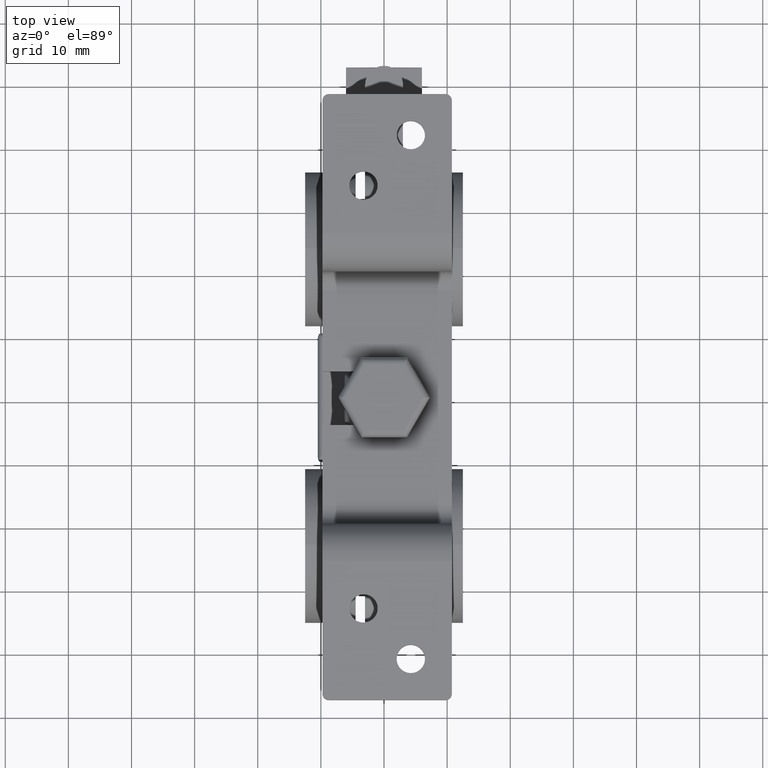
[diagram: clean part render]
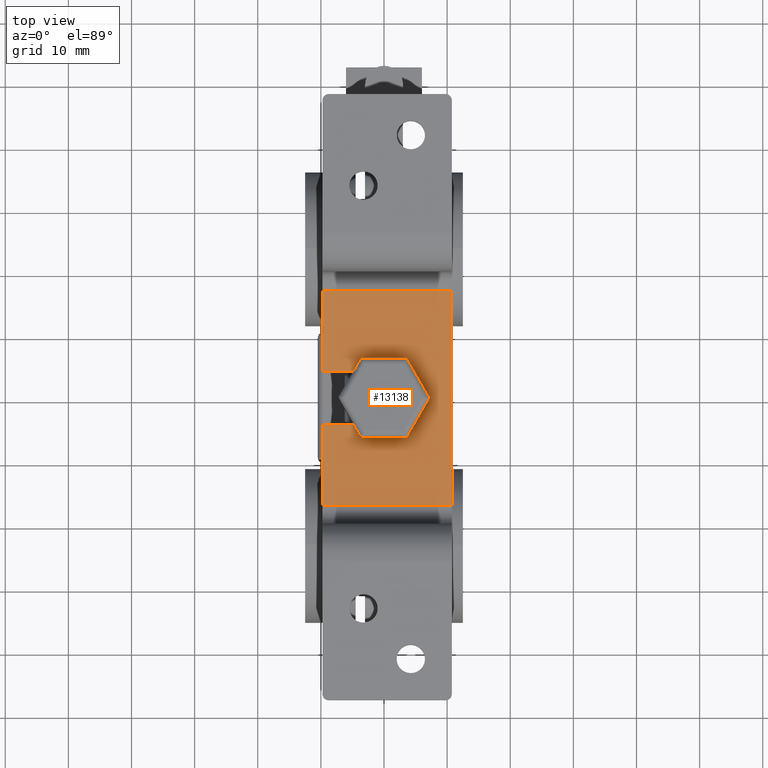
[diagram: same view with one face highlighted and labeled with its STEP entity id]
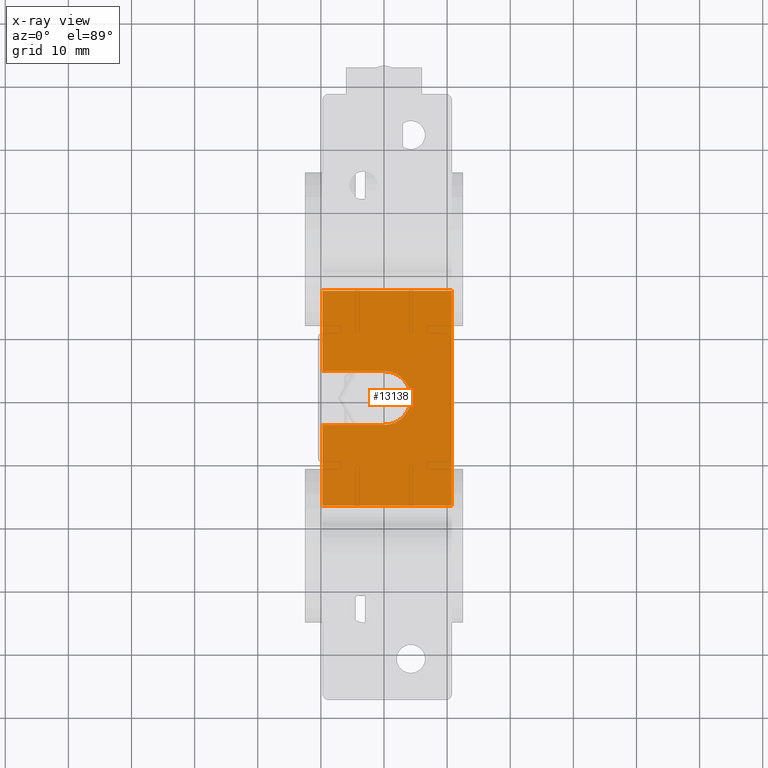
[diagram: x-ray of the same camera — body ghosted, the highlighted face saturated]
A machine part, top view. The second image highlights one B-rep face of the part: STEP entity #13138.
The next image is the same camera in x-ray: the body ghosted, the highlighted face saturated — about 0% of this face is hidden behind the body in this view.
In plain terms, the highlighted planar face has unit normal (0, 0, -1).
Its self-contained STEP definition (entity closure, byte-faithful):
#12388=CARTESIAN_POINT('',(-2.486900E-014,-4.249999999999986,40.000000000000014));
#12389=VERTEX_POINT('',#12388);
#12390=CARTESIAN_POINT('',(4.249999999999979,1.953993E-014,40.000000000000014));
#12391=VERTEX_POINT('',#12390);
#12392=CARTESIAN_POINT('',(-2.486900E-014,1.953993E-014,40.000000000000014));
#12393=DIRECTION('',(-6.123234E-017,0.0,1.0));
#12394=DIRECTION('',(1.0,0.0,6.123234E-017));
#12395=AXIS2_PLACEMENT_3D('',#12392,#12393,#12394);
#12396=CIRCLE('',#12395,4.250000000000004);
#12397=EDGE_CURVE('',#12389,#12391,#12396,.T.);
#12490=CARTESIAN_POINT('',(-9.750000000000025,4.250000000000020,40.000000000000014));
#12491=VERTEX_POINT('',#12490);
#12498=CARTESIAN_POINT('',(-9.750000000000025,17.000000000000021,40.000000000000014));
#12499=VERTEX_POINT('',#12498);
#12500=CARTESIAN_POINT('',(-9.750000000000025,4.250000000000020,40.000000000000014));
#12501=DIRECTION('',(0.0,1.0,0.0));
#12502=VECTOR('',#12501,12.750000000000002);
#12503=LINE('',#12500,#12502);
#12504=EDGE_CURVE('',#12491,#12499,#12503,.T.);
#12581=CARTESIAN_POINT('',(10.749999999999979,17.000000000000021,40.000000000000014));
#12582=VERTEX_POINT('',#12581);
#12590=CARTESIAN_POINT('',(10.749999999999979,-16.999999999999989,40.000000000000014));
#12591=VERTEX_POINT('',#12590);
#12592=CARTESIAN_POINT('',(10.749999999999979,17.000000000000021,40.000000000000014));
#12593=DIRECTION('',(0.0,-1.0,0.0));
#12594=VECTOR('',#12593,34.000000000000007);
#12595=LINE('',#12592,#12594);
#12596=EDGE_CURVE('',#12582,#12591,#12595,.T.);
#12757=CARTESIAN_POINT('',(-9.750000000000025,-16.999999999999989,40.000000000000014));
#12758=VERTEX_POINT('',#12757);
#12766=CARTESIAN_POINT('',(-9.750000000000025,-4.249999999999986,40.000000000000014));
#12767=VERTEX_POINT('',#12766);
#12768=CARTESIAN_POINT('',(-9.750000000000025,-16.999999999999989,40.000000000000014));
#12769=DIRECTION('',(0.0,1.0,0.0));
#12770=VECTOR('',#12769,12.750000000000004);
#12771=LINE('',#12768,#12770);
#12772=EDGE_CURVE('',#12758,#12767,#12771,.T.);
#13094=CARTESIAN_POINT('',(-10.775000000000023,18.700000000000021,40.000000000000014));
#13095=DIRECTION('',(0.0,0.0,-1.0));
#13096=DIRECTION('',(1.0,0.0,0.0));
#13097=AXIS2_PLACEMENT_3D('',#13094,#13095,#13096);
#13098=PLANE('',#13097);
#13099=ORIENTED_EDGE('',*,*,#12504,.F.);
#13100=CARTESIAN_POINT('',(-2.486900E-014,4.250000000000020,40.000000000000014));
#13101=VERTEX_POINT('',#13100);
#13102=CARTESIAN_POINT('',(-2.486900E-014,4.250000000000016,40.000000000000014));
#13103=DIRECTION('',(-1.0,0.0,0.0));
#13104=VECTOR('',#13103,9.750000000000000);
#13105=LINE('',#13102,#13104);
#13106=EDGE_CURVE('',#13101,#12491,#13105,.T.);
#13107=ORIENTED_EDGE('',*,*,#13106,.F.);
#13108=CARTESIAN_POINT('',(-2.486900E-014,1.953993E-014,40.000000000000014));
#13109=DIRECTION('',(-6.123234E-017,0.0,1.0));
#13110=DIRECTION('',(1.0,0.0,6.123234E-017));
#13111=AXIS2_PLACEMENT_3D('',#13108,#13109,#13110);
#13112=CIRCLE('',#13111,4.250000000000004);
#13113=EDGE_CURVE('',#12391,#13101,#13112,.T.);
#13114=ORIENTED_EDGE('',*,*,#13113,.F.);
#13115=ORIENTED_EDGE('',*,*,#12397,.F.);
#13116=CARTESIAN_POINT('',(-9.750000000000025,-4.249999999999986,40.000000000000014));
#13117=DIRECTION('',(1.0,0.0,0.0));
#13118=VECTOR('',#13117,9.750000000000000);
#13119=LINE('',#13116,#13118);
#13120=EDGE_CURVE('',#12767,#12389,#13119,.T.);
#13121=ORIENTED_EDGE('',*,*,#13120,.F.);
#13122=ORIENTED_EDGE('',*,*,#12772,.F.);
#13123=CARTESIAN_POINT('',(10.749999999999979,-16.999999999999989,40.000000000000014));
#13124=DIRECTION('',(-1.0,0.0,0.0));
#13125=VECTOR('',#13124,20.500000000000000);
#13126=LINE('',#13123,#13125);
#13127=EDGE_CURVE('',#12591,#12758,#13126,.T.);
#13128=ORIENTED_EDGE('',*,*,#13127,.F.);
#13129=ORIENTED_EDGE('',*,*,#12596,.F.);
#13130=CARTESIAN_POINT('',(-9.750000000000025,17.000000000000021,40.000000000000014));
#13131=DIRECTION('',(1.0,0.0,0.0));
#13132=VECTOR('',#13131,20.500000000000000);
#13133=LINE('',#13130,#13132);
#13134=EDGE_CURVE('',#12499,#12582,#13133,.T.);
#13135=ORIENTED_EDGE('',*,*,#13134,.F.);
#13136=EDGE_LOOP('',(#13099,#13107,#13114,#13115,#13121,#13122,#13128,#13129,#13135));
#13137=FACE_OUTER_BOUND('',#13136,.T.);
#13138=ADVANCED_FACE('',(#13137),#13098,.F.);